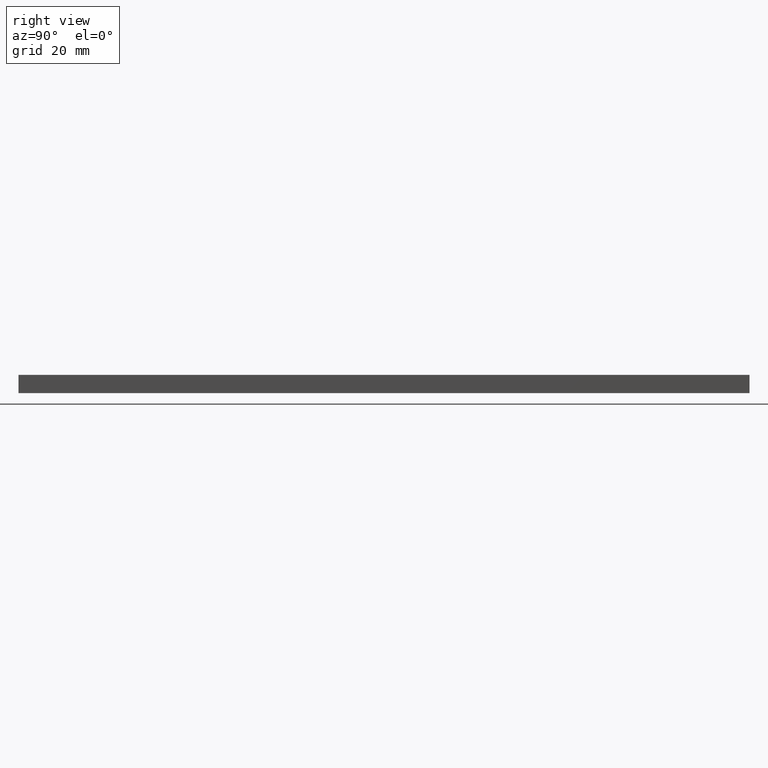
[diagram: clean part render]
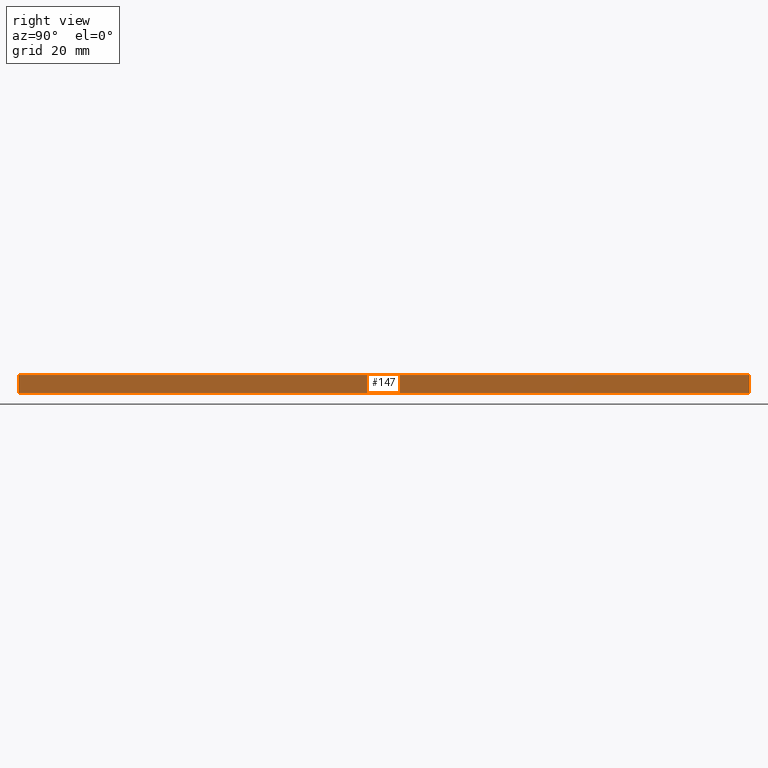
[diagram: same view with one face highlighted and labeled with its STEP entity id]
A machine part, right view. The second image highlights one B-rep face of the part: STEP entity #147.
In plain terms, the highlighted planar face has unit normal (-1, 0, 0).
Its self-contained STEP definition (entity closure, byte-faithful):
#13 = EDGE_CURVE ( 'NONE', #90, #204, #47, .T. ) ;
#19 = DIRECTION ( 'NONE',  ( 0.0000000000000000000, 0.0000000000000000000, 1.000000000000000000 ) ) ;
#21 = CARTESIAN_POINT ( 'NONE',  ( 5.000000000000000000, 1000.000000000000000, 0.0000000000000000000 ) ) ;
#26 = ORIENTED_EDGE ( 'NONE', *, *, #94, .T. ) ;
#33 = EDGE_LOOP ( 'NONE', ( #142, #131, #93, #26 ) ) ;
#47 = LINE ( 'NONE', #107, #72 ) ;
#48 = EDGE_CURVE ( 'NONE', #237, #200, #162, .T. ) ;
#54 = CARTESIAN_POINT ( 'NONE',  ( 5.000000000000000000, 0.0000000000000000000, 5.000000000000000000 ) ) ;
#61 = VECTOR ( 'NONE', #194, 1000.000000000000000 ) ;
#67 = DIRECTION ( 'NONE',  ( 0.0000000000000000000, 0.0000000000000000000, -1.000000000000000000 ) ) ;
#72 = VECTOR ( 'NONE', #67, 1000.000000000000000 ) ;
#77 = CARTESIAN_POINT ( 'NONE',  ( 5.000000000000000000, 200.0000000000000000, 5.000000000000000000 ) ) ;
#90 = VERTEX_POINT ( 'NONE', #77 ) ;
#93 = ORIENTED_EDGE ( 'NONE', *, *, #13, .F. ) ;
#94 = EDGE_CURVE ( 'NONE', #90, #237, #225, .T. ) ;
#105 = CARTESIAN_POINT ( 'NONE',  ( 5.000000000000000000, 0.0000000000000000000, 5.000000000000000000 ) ) ;
#107 = CARTESIAN_POINT ( 'NONE',  ( 5.000000000000000000, 200.0000000000000000, 5.000000000000000000 ) ) ;
#118 = LINE ( 'NONE', #21, #166 ) ;
#126 = FACE_OUTER_BOUND ( 'NONE', #33, .T. ) ;
#131 = ORIENTED_EDGE ( 'NONE', *, *, #137, .F. ) ;
#133 = CARTESIAN_POINT ( 'NONE',  ( 5.000000000000000000, 0.0000000000000000000, 0.0000000000000000000 ) ) ;
#134 = DIRECTION ( 'NONE',  ( -1.000000000000000000, 0.0000000000000000000, 0.0000000000000000000 ) ) ;
#137 = EDGE_CURVE ( 'NONE', #204, #200, #118, .T. ) ;
#142 = ORIENTED_EDGE ( 'NONE', *, *, #48, .T. ) ;
#147 = ADVANCED_FACE ( 'NONE', ( #126 ), #230, .F. ) ;
#153 = VECTOR ( 'NONE', #216, 1000.000000000000000 ) ;
#155 = DIRECTION ( 'NONE',  ( 0.0000000000000000000, -1.000000000000000000, 0.0000000000000000000 ) ) ;
#162 = LINE ( 'NONE', #105, #153 ) ;
#166 = VECTOR ( 'NONE', #155, 1000.000000000000000 ) ;
#176 = CARTESIAN_POINT ( 'NONE',  ( 5.000000000000000000, 1000.000000000000000, 5.000000000000000000 ) ) ;
#193 = AXIS2_PLACEMENT_3D ( 'NONE', #176, #134, #19 ) ;
#194 = DIRECTION ( 'NONE',  ( 0.0000000000000000000, -1.000000000000000000, 0.0000000000000000000 ) ) ;
#200 = VERTEX_POINT ( 'NONE', #133 ) ;
#204 = VERTEX_POINT ( 'NONE', #235 ) ;
#216 = DIRECTION ( 'NONE',  ( 0.0000000000000000000, 0.0000000000000000000, -1.000000000000000000 ) ) ;
#225 = LINE ( 'NONE', #229, #61 ) ;
#229 = CARTESIAN_POINT ( 'NONE',  ( 5.000000000000000000, 1000.000000000000000, 5.000000000000000000 ) ) ;
#230 = PLANE ( 'NONE',  #193 ) ;
#235 = CARTESIAN_POINT ( 'NONE',  ( 5.000000000000000000, 200.0000000000000000, 0.0000000000000000000 ) ) ;
#237 = VERTEX_POINT ( 'NONE', #54 ) ;